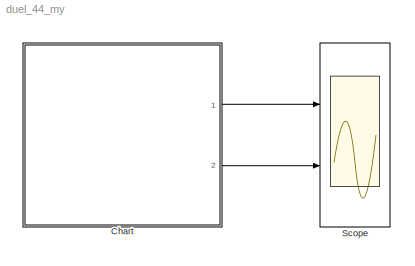
MODEL duel_44_my
KIND model
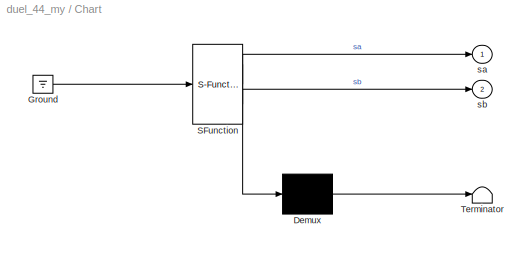
BLOCK [SubSystem] Chart
  FunctionWithSeparateData = off
  MaskDescription = Stateflow diagram
  MaskDisplay = plot(sf('Private','sfblk','xIcon'),sf('Private','sfblk','yIcon'));text(0.5,0,sf('Private', 'sfblk', 'tIcon'),'HorizontalAl','Center','VerticalAl','Bottom');
  MaskHideContents = off
  MaskIconFrame = off
  MaskIconOpaque = off
  MaskIconRotate = none
  MaskIconUnits = normalized
  MaskPortRotate = default
  MaskSelfModifiable = on
  MaskType = Stateflow
  MinAlgLoopOccurrences = off
  Opaque = off
  PermitHierarchicalResolution = ParametersOnly
  Ports = [0, 2]
  PropExecContextOutsideSubsystem = off
  RTWSystemCode = Auto
  RequestExecContextInheritance = off
  SID = 1
  TreatAsAtomicUnit = on
BLOCK [Demux] Chart/ Demux 
  Outputs = 1
  Ports = [1, 1]
  SID = 8
BLOCK [Ground] Chart/ Ground 
  SID = 10
BLOCK [S-Function] Chart/ SFunction 
  EnableBusSupport = on
  FunctionName = sf_sfun
  PortCounts = [1 3]
  Ports = [1, 3]
  SFunctionDeploymentMode = off
  SID = 7
  Tag = Stateflow S-Function duel_44_my 1
BLOCK [Terminator] Chart/ Terminator 
  SID = 9
BLOCK [Outport] Chart/sa
  IconDisplay = Port number
  SID = 5
BLOCK [Outport] Chart/sb
  IconDisplay = Port number
  Port = 2
  SID = 6
BLOCK [Scope] Scope
  DataFormat = StructureWithTime
  Decimation = 1
  Grid = on
  LimitDataPoints = on
  MaxDataPoints = 100
  NumInputPorts = 2
  Ports = [2]
  SID = 2
  SampleInput = on
  SampleTime = Ts
  SaveName = ScopeData
  SaveToWorkspace = off
  TickLabels = OneTimeTick
  TimeRange = auto
  YMax = 5~5
  YMin = 0~0
  ZoomMode = on
LINE Chart/ Demux :1 -> Chart/ Terminator :1
LINE Chart/ Ground :1 -> Chart/ SFunction :1
LINE Chart/ SFunction :1 -> Chart/ Demux :1
LINE Chart/ SFunction :2 -> Chart/sa:1
LINE Chart/ SFunction :3 -> Chart/sb:1
LINE Chart:1 -> Scope:1
LINE Chart:2 -> Scope:2
CHART Chart states=65 transitions=73
  STATE_LABEL 'B4'
  STATE_LABEL 'life_B/'
  STATE_LABEL 'victory_B/\\nentry: send(attack_b);'
  STATE_LABEL "B_1/\\nentry: bt1=t+ml('pro(LB1)');"
  STATE_LABEL "B_2/\\nentry: bt2=t+ml('pro(LB2)');\\nk=ml('res(na0)'); ml.na0[k]=2;"
  STATE_LABEL "B_3/\\nentry: bt3=t+ml('pro(LB3)');\\nduring: p2=ml('rand');"
  STATE_LABEL 'death_B/'
  STATE_LABEL 'A1'
  STATE_LABEL 'life_A/'
  STATE_LABEL "A_1/\\nentry: at1=t+ml('pro(LA1)');"
  STATE_LABEL 'victory_A/\\nentry: send(attack_a);'
  STATE_LABEL "A_2/\\nentry:  at2=t+ml('pro(LA2)');\\nk=ml('res(nb0)');ml.nb0[k]=2;"
  STATE_LABEL "A_3/\\nentry: at3=t+ml('pro(LA3)');\\nduring: p1=ml('rand');"
  STATE_LABEL 'death_A/'
  STATE_LABEL 'B1'
  STATE_LABEL 'life_B/'
  STATE_LABEL 'victory_B/\\nentry: send(attack_b);'
  STATE_LABEL "B_1/\\nentry: bt1=t+ml('pro(LB1)');"
  STATE_LABEL "B_2/\\nentry: bt2=t+ml('pro(LB2)');\\nk=ml('res(na0)'); ml.na0[k]=2;"
  STATE_LABEL "B_3/\\nentry: bt3=t+ml('pro(LB3)');\\nduring: p2=ml('rand');"
  STATE_LABEL 'death_B/'
  STATE_LABEL 'B5'
  STATE_LABEL 'life_B/'
  STATE_LABEL 'victory_B/\\nentry: send(attack_b);'
  STATE_LABEL "B_1/\\nentry: bt1=t+ml('pro(LB1)');"
  STATE_LABEL "B_2/\\nentry: bt2=t+ml('pro(LB2)');\\nk=ml('res(na0)'); ml.na0[k]=2;"
  STATE_LABEL "B_3/\\nentry: bt3=t+ml('pro(LB3)');\\nduring: p2=ml('rand');"
  STATE_LABEL 'death_B/'
  STATE_LABEL 'A2'
  STATE_LABEL 'life_A/'
  STATE_LABEL "A_1/\\nentry: at1=t+ml('pro(LA1)');"
  STATE_LABEL 'victory_A/\\nentry: send(attack_a);'
  STATE_LABEL "A_2/\\nentry:  at2=t+ml('pro(LA2)');\\nk=ml('res(nb0)');ml.nb0[k]=2;"
  STATE_LABEL "A_3/\\nentry: at3=t+ml('pro(LA3)');\\nduring: p1=ml('rand');"
  STATE_LABEL 'death_A/'
  STATE_LABEL 'B2'
  STATE_LABEL 'life_B/'
  STATE_LABEL 'victory_B/\\nentry: send(attack_b);'
  STATE_LABEL "B_1/\\nentry: bt1=t+ml('pro(LB1)');"
  STATE_LABEL "B_2/\\nentry: bt2=t+ml('pro(LB2)');\\nk=ml('res(na0)'); ml.na0[k]=2;"
